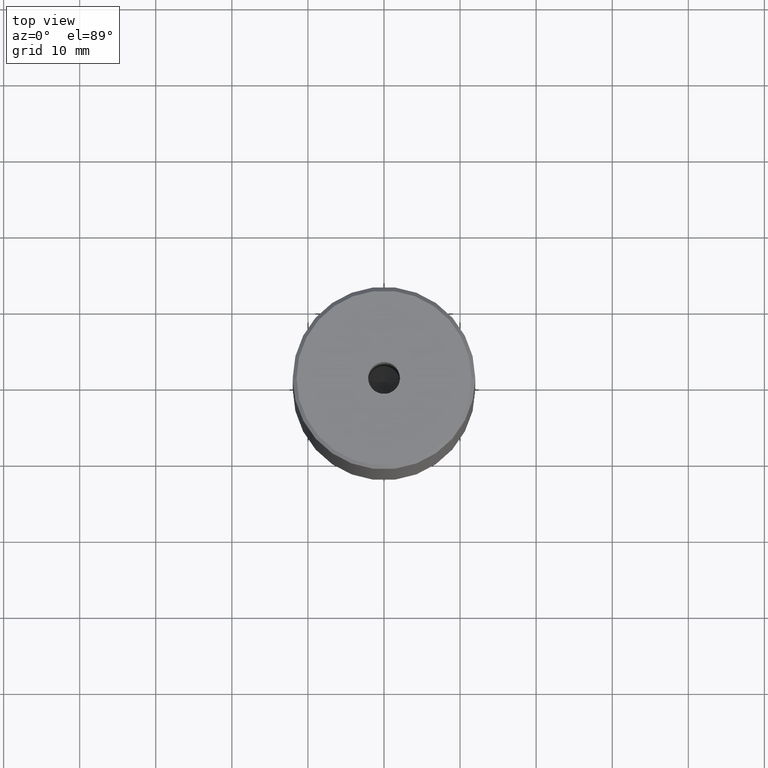
[diagram: clean part render]
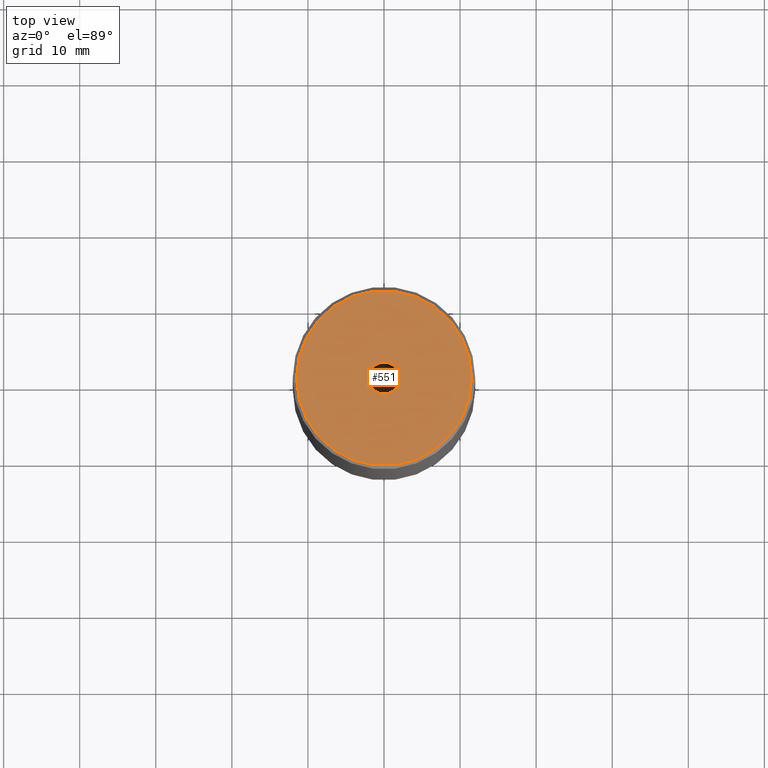
[diagram: same view with one face highlighted and labeled with its STEP entity id]
A machine part, top view. The second image highlights one B-rep face of the part: STEP entity #551.
In plain terms, the highlighted planar face has unit normal (0, -0, 1).
Its self-contained STEP definition (entity closure, byte-faithful):
#3 = CIRCLE ( 'NONE', #467, 11.49999999999999467 ) ;
#8 = DIRECTION ( 'NONE',  ( 1.000000000000000000, 0.000000000000000000, 0.000000000000000000 ) ) ;
#33 = DIRECTION ( 'NONE',  ( -0.000000000000000000, -0.000000000000000000, 1.000000000000000000 ) ) ;
#38 = FACE_OUTER_BOUND ( 'NONE', #323, .T. ) ;
#54 = CIRCLE ( 'NONE', #212, 2.099999999999998757 ) ;
#59 = EDGE_CURVE ( 'NONE', #341, #234, #3, .T. ) ;
#60 = EDGE_CURVE ( 'NONE', #166, #579, #112, .T. ) ;
#66 = CARTESIAN_POINT ( 'NONE',  ( 0.000000000000000000, 0.000000000000000000, 0.000000000000000000 ) ) ;
#80 = PLANE ( 'NONE',  #421 ) ;
#84 = DIRECTION ( 'NONE',  ( -0.000000000000000000, -0.000000000000000000, 1.000000000000000000 ) ) ;
#93 = DIRECTION ( 'NONE',  ( 1.000000000000000000, 0.000000000000000000, 0.000000000000000000 ) ) ;
#112 = CIRCLE ( 'NONE', #567, 2.099999999999998757 ) ;
#130 = CIRCLE ( 'NONE', #461, 11.49999999999999467 ) ;
#137 = ORIENTED_EDGE ( 'NONE', *, *, #60, .F. ) ;
#144 = EDGE_CURVE ( 'NONE', #579, #166, #54, .T. ) ;
#166 = VERTEX_POINT ( 'NONE', #580 ) ;
#170 = FACE_BOUND ( 'NONE', #437, .T. ) ;
#178 = CARTESIAN_POINT ( 'NONE',  ( 2.099999999999998757, 0.000000000000000000, -1.990051048614449116E-16 ) ) ;
#212 = AXIS2_PLACEMENT_3D ( 'NONE', #527, #33, #93 ) ;
#234 = VERTEX_POINT ( 'NONE', #352 ) ;
#251 = CARTESIAN_POINT ( 'NONE',  ( 0.000000000000000000, 0.000000000000000000, -1.990051048614449116E-16 ) ) ;
#259 = DIRECTION ( 'NONE',  ( 1.000000000000000000, 0.000000000000000000, 0.000000000000000000 ) ) ;
#270 = ORIENTED_EDGE ( 'NONE', *, *, #144, .F. ) ;
#289 = CARTESIAN_POINT ( 'NONE',  ( 0.000000000000000000, 0.000000000000000000, 0.000000000000000000 ) ) ;
#323 = EDGE_LOOP ( 'NONE', ( #539, #389 ) ) ;
#341 = VERTEX_POINT ( 'NONE', #345 ) ;
#345 = CARTESIAN_POINT ( 'NONE',  ( 11.49999999999999467, 1.438959988998139766E-15, 0.000000000000000000 ) ) ;
#351 = CARTESIAN_POINT ( 'NONE',  ( 0.000000000000000000, 0.000000000000000000, 0.000000000000000000 ) ) ;
#352 = CARTESIAN_POINT ( 'NONE',  ( -11.49999999999999467, 0.000000000000000000, 0.000000000000000000 ) ) ;
#389 = ORIENTED_EDGE ( 'NONE', *, *, #59, .T. ) ;
#402 = DIRECTION ( 'NONE',  ( 0.000000000000000000, -0.000000000000000000, 1.000000000000000000 ) ) ;
#416 = DIRECTION ( 'NONE',  ( -0.000000000000000000, -0.000000000000000000, 1.000000000000000000 ) ) ;
#421 = AXIS2_PLACEMENT_3D ( 'NONE', #351, #402, #528 ) ;
#426 = DIRECTION ( 'NONE',  ( -0.000000000000000000, -0.000000000000000000, 1.000000000000000000 ) ) ;
#437 = EDGE_LOOP ( 'NONE', ( #270, #137 ) ) ;
#461 = AXIS2_PLACEMENT_3D ( 'NONE', #289, #84, #259 ) ;
#466 = EDGE_CURVE ( 'NONE', #234, #341, #130, .T. ) ;
#467 = AXIS2_PLACEMENT_3D ( 'NONE', #66, #426, #474 ) ;
#474 = DIRECTION ( 'NONE',  ( 1.000000000000000000, 0.000000000000000000, 0.000000000000000000 ) ) ;
#527 = CARTESIAN_POINT ( 'NONE',  ( 0.000000000000000000, 0.000000000000000000, -1.990051048614449116E-16 ) ) ;
#528 = DIRECTION ( 'NONE',  ( 1.000000000000000000, 0.000000000000000000, 0.000000000000000000 ) ) ;
#539 = ORIENTED_EDGE ( 'NONE', *, *, #466, .T. ) ;
#551 = ADVANCED_FACE ( 'NONE', ( #170, #38 ), #80, .T. ) ;
#567 = AXIS2_PLACEMENT_3D ( 'NONE', #251, #416, #8 ) ;
#579 = VERTEX_POINT ( 'NONE', #178 ) ;
#580 = CARTESIAN_POINT ( 'NONE',  ( -2.099999999999998757, 2.571758278209440478E-16, -1.990051048614449116E-16 ) ) ;